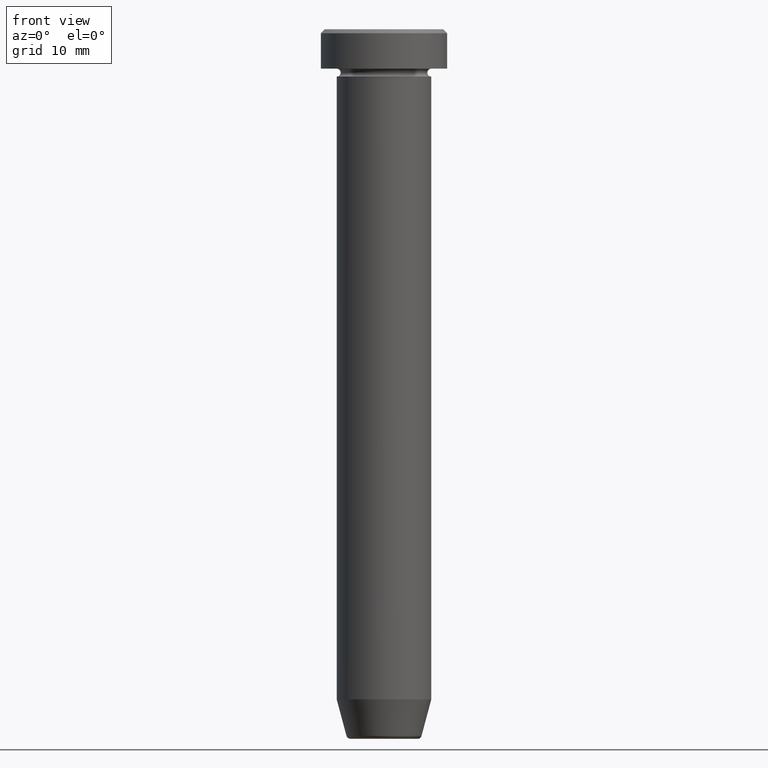
[diagram: clean part render]
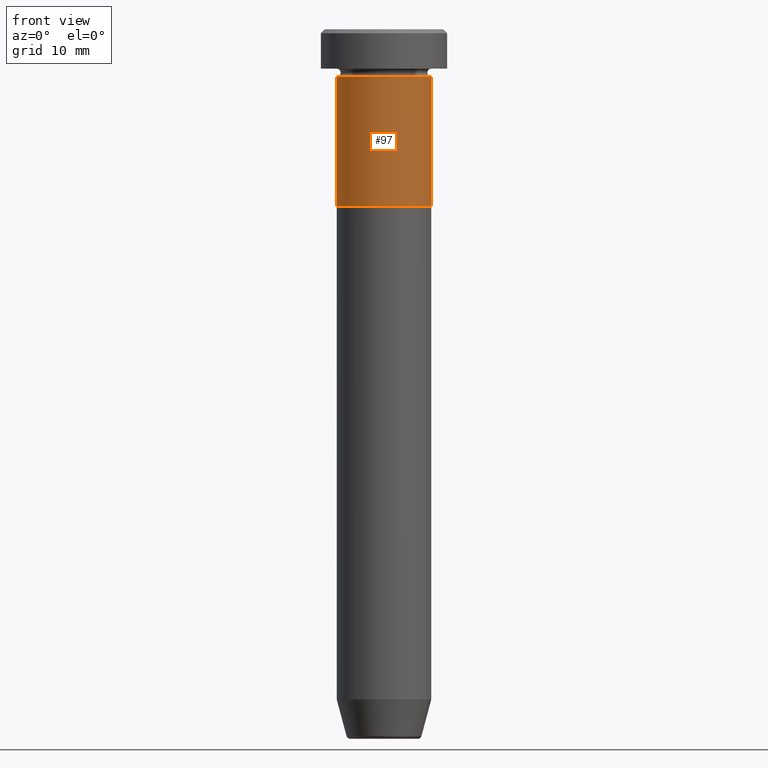
[diagram: same view with one face highlighted and labeled with its STEP entity id]
A machine part, front view. The second image highlights one B-rep face of the part: STEP entity #97.
In plain terms, the highlighted cylindrical surface (partial cylindrical patch) has radius 6 mm, axis along (-0, -0, 1).
Its self-contained STEP definition (entity closure, byte-faithful):
#28 = ORIENTED_EDGE ( 'NONE', *, *, #191, .T. ) ;
#31 = DIRECTION ( 'NONE',  ( -0.000000000000000000, -0.000000000000000000, 1.000000000000000000 ) ) ;
#35 = CARTESIAN_POINT ( 'NONE',  ( -6.000000000000000000, 7.347880794884119736E-16, 0.000000000000000000 ) ) ;
#37 = VERTEX_POINT ( 'NONE', #581 ) ;
#80 = DIRECTION ( 'NONE',  ( -0.000000000000000000, -0.000000000000000000, 1.000000000000000000 ) ) ;
#97 = ADVANCED_FACE ( 'NONE', ( #551 ), #400, .T. ) ;
#99 = ORIENTED_EDGE ( 'NONE', *, *, #188, .F. ) ;
#123 = EDGE_CURVE ( 'NONE', #520, #541, #312, .T. ) ;
#132 = CIRCLE ( 'NONE', #270, 6.000000000000000000 ) ;
#148 = CARTESIAN_POINT ( 'NONE',  ( 6.000000000000000000, 0.000000000000000000, -22.50000000000000000 ) ) ;
#165 = CARTESIAN_POINT ( 'NONE',  ( 0.000000000000000000, 0.000000000000000000, -6.000000000000000000 ) ) ;
#174 = ORIENTED_EDGE ( 'NONE', *, *, #371, .T. ) ;
#178 = DIRECTION ( 'NONE',  ( -0.000000000000000000, -0.000000000000000000, 1.000000000000000000 ) ) ;
#188 = EDGE_CURVE ( 'NONE', #541, #37, #132, .T. ) ;
#191 = EDGE_CURVE ( 'NONE', #470, #37, #351, .T. ) ;
#210 = AXIS2_PLACEMENT_3D ( 'NONE', #340, #390, #243 ) ;
#243 = DIRECTION ( 'NONE',  ( 1.000000000000000000, 0.000000000000000000, 0.000000000000000000 ) ) ;
#270 = AXIS2_PLACEMENT_3D ( 'NONE', #165, #584, #395 ) ;
#292 = VECTOR ( 'NONE', #31, 1000.000000000000000 ) ;
#304 = CARTESIAN_POINT ( 'NONE',  ( 0.000000000000000000, 0.000000000000000000, 0.000000000000000000 ) ) ;
#312 = LINE ( 'NONE', #35, #355 ) ;
#335 = CARTESIAN_POINT ( 'NONE',  ( -6.000000000000000000, 7.347880794884119736E-16, -22.50000000000000000 ) ) ;
#340 = CARTESIAN_POINT ( 'NONE',  ( 0.000000000000000000, 0.000000000000000000, -22.50000000000000000 ) ) ;
#351 = LINE ( 'NONE', #587, #292 ) ;
#354 = DIRECTION ( 'NONE',  ( 1.000000000000000000, 0.000000000000000000, 0.000000000000000000 ) ) ;
#355 = VECTOR ( 'NONE', #178, 1000.000000000000000 ) ;
#371 = EDGE_CURVE ( 'NONE', #520, #470, #435, .T. ) ;
#390 = DIRECTION ( 'NONE',  ( -0.000000000000000000, -0.000000000000000000, 1.000000000000000000 ) ) ;
#395 = DIRECTION ( 'NONE',  ( 1.000000000000000000, 0.000000000000000000, 0.000000000000000000 ) ) ;
#400 = CYLINDRICAL_SURFACE ( 'NONE', #501, 6.000000000000000000 ) ;
#411 = EDGE_LOOP ( 'NONE', ( #502, #174, #28, #99 ) ) ;
#435 = CIRCLE ( 'NONE', #210, 6.000000000000000000 ) ;
#470 = VERTEX_POINT ( 'NONE', #148 ) ;
#501 = AXIS2_PLACEMENT_3D ( 'NONE', #304, #80, #354 ) ;
#502 = ORIENTED_EDGE ( 'NONE', *, *, #123, .F. ) ;
#508 = CARTESIAN_POINT ( 'NONE',  ( -6.000000000000000000, 7.347880794884119736E-16, -6.000000000000000000 ) ) ;
#520 = VERTEX_POINT ( 'NONE', #335 ) ;
#541 = VERTEX_POINT ( 'NONE', #508 ) ;
#551 = FACE_OUTER_BOUND ( 'NONE', #411, .T. ) ;
#581 = CARTESIAN_POINT ( 'NONE',  ( 6.000000000000000000, 0.000000000000000000, -6.000000000000000000 ) ) ;
#584 = DIRECTION ( 'NONE',  ( -0.000000000000000000, -0.000000000000000000, 1.000000000000000000 ) ) ;
#587 = CARTESIAN_POINT ( 'NONE',  ( 6.000000000000000000, 0.000000000000000000, 0.000000000000000000 ) ) ;